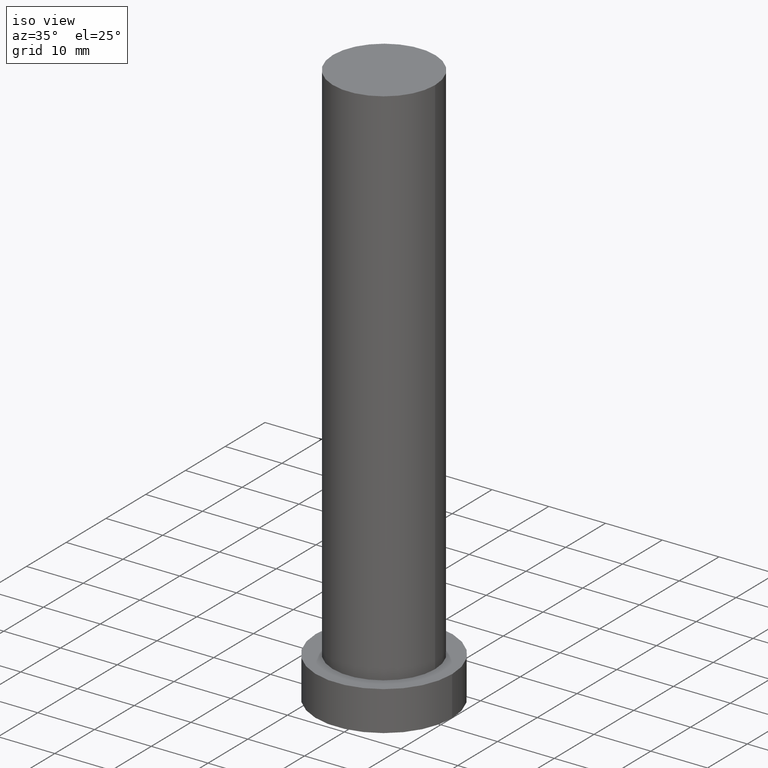
[diagram: clean part render]
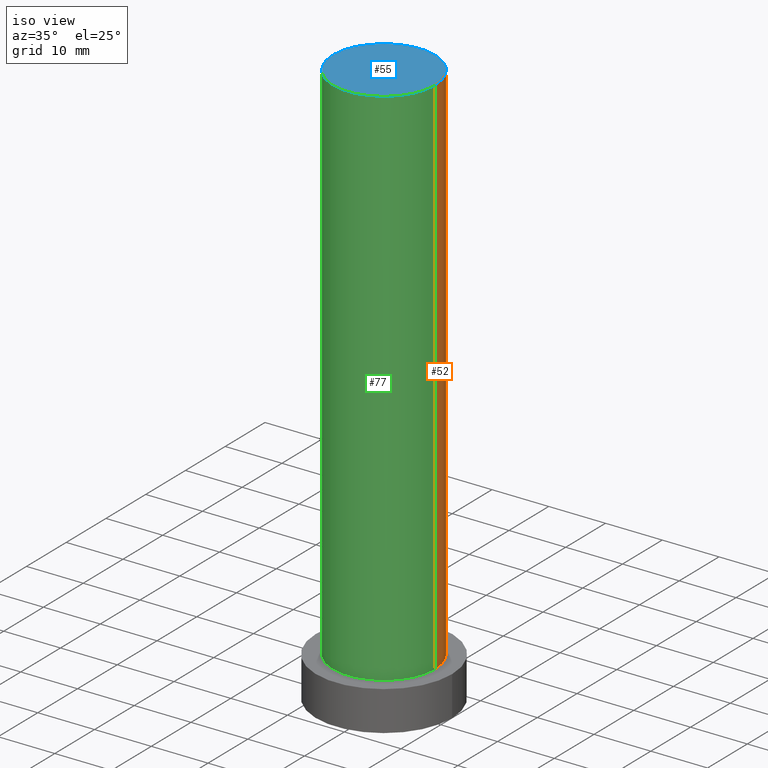
[diagram: same view with three faces highlighted in distinct colors, each labeled with its STEP entity id]
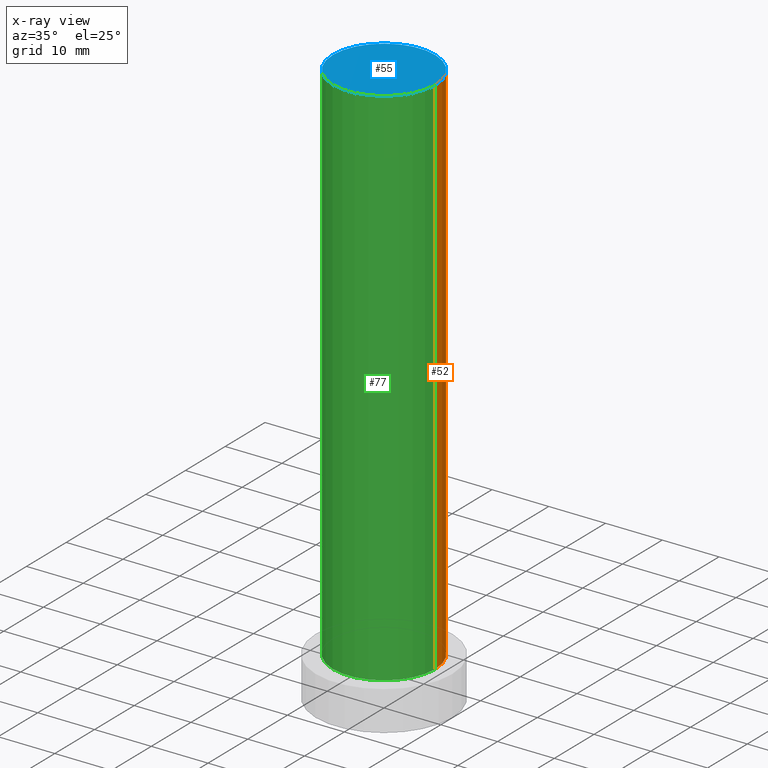
[diagram: x-ray of the same camera — body ghosted, the three highlighted faces saturated]
A machine part, iso view with three faces highlighted in distinct colors.
The next image is the same camera in x-ray (body ghosted, the three faces saturated) — at least one of them is partly hidden behind the body in this view.
Their STEP definitions:

[orange] entity #52 — the highlighted cylindrical surface (partial cylindrical patch) has radius 9 mm, axis along (-0, -0, -1).
#5 = LINE ( 'NONE', #172, #22 ) ;
#11 = AXIS2_PLACEMENT_3D ( 'NONE', #211, #25, #106 ) ;
#22 = VECTOR ( 'NONE', #235, 1000.000000000000000 ) ;
#24 = CIRCLE ( 'NONE', #223, 9.000000000000001776 ) ;
#25 = DIRECTION ( 'NONE',  ( -0.000000000000000000, -0.000000000000000000, -1.000000000000000000 ) ) ;
#28 = CARTESIAN_POINT ( 'NONE',  ( 9.000000000000001776, 1.102182119232617714E-15, 7.000000000000000000 ) ) ;
#30 = DIRECTION ( 'NONE',  ( 0.000000000000000000, 0.000000000000000000, 1.000000000000000000 ) ) ;
#32 = CARTESIAN_POINT ( 'NONE',  ( 0.000000000000000000, 0.000000000000000000, 100.0000000000000000 ) ) ;
#47 = EDGE_CURVE ( 'NONE', #250, #99, #232, .T. ) ;
#50 = EDGE_CURVE ( 'NONE', #174, #123, #5, .T. ) ;
#52 = ADVANCED_FACE ( 'NONE', ( #237 ), #60, .T. ) ;
#60 = CYLINDRICAL_SURFACE ( 'NONE', #11, 9.000000000000001776 ) ;
#83 = EDGE_CURVE ( 'NONE', #174, #250, #193, .T. ) ;
#99 = VERTEX_POINT ( 'NONE', #110 ) ;
#105 = ORIENTED_EDGE ( 'NONE', *, *, #47, .F. ) ;
#106 = DIRECTION ( 'NONE',  ( -1.000000000000000000, 0.000000000000000000, 0.000000000000000000 ) ) ;
#109 = CARTESIAN_POINT ( 'NONE',  ( 9.000000000000001776, 1.102182119232617714E-15, 100.0000000000000000 ) ) ;
#110 = CARTESIAN_POINT ( 'NONE',  ( -9.000000000000001776, 0.000000000000000000, 7.000000000000000000 ) ) ;
#111 = DIRECTION ( 'NONE',  ( 1.000000000000000000, 0.000000000000000000, 0.000000000000000000 ) ) ;
#123 = VERTEX_POINT ( 'NONE', #28 ) ;
#132 = VECTOR ( 'NONE', #136, 1000.000000000000000 ) ;
#136 = DIRECTION ( 'NONE',  ( -0.000000000000000000, -0.000000000000000000, -1.000000000000000000 ) ) ;
#150 = ORIENTED_EDGE ( 'NONE', *, *, #83, .F. ) ;
#152 = CARTESIAN_POINT ( 'NONE',  ( -9.000000000000001776, 0.000000000000000000, 100.0000000000000000 ) ) ;
#157 = CARTESIAN_POINT ( 'NONE',  ( -9.000000000000001776, 0.000000000000000000, 100.0000000000000000 ) ) ;
#167 = DIRECTION ( 'NONE',  ( 1.000000000000000000, 0.000000000000000000, 0.000000000000000000 ) ) ;
#172 = CARTESIAN_POINT ( 'NONE',  ( 9.000000000000001776, 1.102182119232617714E-15, 100.0000000000000000 ) ) ;
#174 = VERTEX_POINT ( 'NONE', #109 ) ;
#175 = EDGE_CURVE ( 'NONE', #123, #99, #24, .T. ) ;
#176 = EDGE_LOOP ( 'NONE', ( #150, #214, #252, #105 ) ) ;
#193 = CIRCLE ( 'NONE', #226, 9.000000000000001776 ) ;
#205 = CARTESIAN_POINT ( 'NONE',  ( 0.000000000000000000, 0.000000000000000000, 7.000000000000000000 ) ) ;
#211 = CARTESIAN_POINT ( 'NONE',  ( 0.000000000000000000, 0.000000000000000000, 100.0000000000000000 ) ) ;
#214 = ORIENTED_EDGE ( 'NONE', *, *, #50, .T. ) ;
#221 = DIRECTION ( 'NONE',  ( 0.000000000000000000, 0.000000000000000000, 1.000000000000000000 ) ) ;
#223 = AXIS2_PLACEMENT_3D ( 'NONE', #205, #30, #111 ) ;
#226 = AXIS2_PLACEMENT_3D ( 'NONE', #32, #221, #167 ) ;
#232 = LINE ( 'NONE', #157, #132 ) ;
#235 = DIRECTION ( 'NONE',  ( -0.000000000000000000, -0.000000000000000000, -1.000000000000000000 ) ) ;
#237 = FACE_OUTER_BOUND ( 'NONE', #176, .T. ) ;
#250 = VERTEX_POINT ( 'NONE', #152 ) ;
#252 = ORIENTED_EDGE ( 'NONE', *, *, #175, .T. ) ;

[blue] entity #55 — the highlighted planar face has unit normal (0, 0, 1).
#13 = CARTESIAN_POINT ( 'NONE',  ( 0.000000000000000000, 0.000000000000000000, 100.0000000000000000 ) ) ;
#32 = CARTESIAN_POINT ( 'NONE',  ( 0.000000000000000000, 0.000000000000000000, 100.0000000000000000 ) ) ;
#35 = PLANE ( 'NONE',  #71 ) ;
#55 = ADVANCED_FACE ( 'NONE', ( #76 ), #35, .T. ) ;
#61 = DIRECTION ( 'NONE',  ( 1.000000000000000000, 0.000000000000000000, -0.000000000000000000 ) ) ;
#70 = CIRCLE ( 'NONE', #95, 9.000000000000001776 ) ;
#71 = AXIS2_PLACEMENT_3D ( 'NONE', #153, #212, #61 ) ;
#76 = FACE_OUTER_BOUND ( 'NONE', #98, .T. ) ;
#83 = EDGE_CURVE ( 'NONE', #174, #250, #193, .T. ) ;
#95 = AXIS2_PLACEMENT_3D ( 'NONE', #13, #142, #124 ) ;
#98 = EDGE_LOOP ( 'NONE', ( #228, #230 ) ) ;
#109 = CARTESIAN_POINT ( 'NONE',  ( 9.000000000000001776, 1.102182119232617714E-15, 100.0000000000000000 ) ) ;
#124 = DIRECTION ( 'NONE',  ( 1.000000000000000000, 0.000000000000000000, 0.000000000000000000 ) ) ;
#142 = DIRECTION ( 'NONE',  ( 0.000000000000000000, 0.000000000000000000, 1.000000000000000000 ) ) ;
#152 = CARTESIAN_POINT ( 'NONE',  ( -9.000000000000001776, 0.000000000000000000, 100.0000000000000000 ) ) ;
#153 = CARTESIAN_POINT ( 'NONE',  ( 0.000000000000000000, 0.000000000000000000, 100.0000000000000000 ) ) ;
#167 = DIRECTION ( 'NONE',  ( 1.000000000000000000, 0.000000000000000000, 0.000000000000000000 ) ) ;
#174 = VERTEX_POINT ( 'NONE', #109 ) ;
#193 = CIRCLE ( 'NONE', #226, 9.000000000000001776 ) ;
#209 = EDGE_CURVE ( 'NONE', #250, #174, #70, .T. ) ;
#212 = DIRECTION ( 'NONE',  ( 0.000000000000000000, 0.000000000000000000, 1.000000000000000000 ) ) ;
#221 = DIRECTION ( 'NONE',  ( 0.000000000000000000, 0.000000000000000000, 1.000000000000000000 ) ) ;
#226 = AXIS2_PLACEMENT_3D ( 'NONE', #32, #221, #167 ) ;
#228 = ORIENTED_EDGE ( 'NONE', *, *, #209, .T. ) ;
#230 = ORIENTED_EDGE ( 'NONE', *, *, #83, .T. ) ;
#250 = VERTEX_POINT ( 'NONE', #152 ) ;

[green] entity #77 — the highlighted cylindrical surface (partial cylindrical patch) has radius 9 mm, axis along (-0, -0, -1).
#5 = LINE ( 'NONE', #172, #22 ) ;
#7 = CIRCLE ( 'NONE', #166, 9.000000000000001776 ) ;
#13 = CARTESIAN_POINT ( 'NONE',  ( 0.000000000000000000, 0.000000000000000000, 100.0000000000000000 ) ) ;
#22 = VECTOR ( 'NONE', #235, 1000.000000000000000 ) ;
#28 = CARTESIAN_POINT ( 'NONE',  ( 9.000000000000001776, 1.102182119232617714E-15, 7.000000000000000000 ) ) ;
#36 = EDGE_LOOP ( 'NONE', ( #79, #122, #197, #191 ) ) ;
#43 = DIRECTION ( 'NONE',  ( -1.000000000000000000, 0.000000000000000000, 0.000000000000000000 ) ) ;
#47 = EDGE_CURVE ( 'NONE', #250, #99, #232, .T. ) ;
#50 = EDGE_CURVE ( 'NONE', #174, #123, #5, .T. ) ;
#70 = CIRCLE ( 'NONE', #95, 9.000000000000001776 ) ;
#77 = ADVANCED_FACE ( 'NONE', ( #88 ), #220, .T. ) ;
#79 = ORIENTED_EDGE ( 'NONE', *, *, #50, .F. ) ;
#84 = AXIS2_PLACEMENT_3D ( 'NONE', #204, #93, #43 ) ;
#88 = FACE_OUTER_BOUND ( 'NONE', #36, .T. ) ;
#93 = DIRECTION ( 'NONE',  ( -0.000000000000000000, -0.000000000000000000, -1.000000000000000000 ) ) ;
#95 = AXIS2_PLACEMENT_3D ( 'NONE', #13, #142, #124 ) ;
#99 = VERTEX_POINT ( 'NONE', #110 ) ;
#109 = CARTESIAN_POINT ( 'NONE',  ( 9.000000000000001776, 1.102182119232617714E-15, 100.0000000000000000 ) ) ;
#110 = CARTESIAN_POINT ( 'NONE',  ( -9.000000000000001776, 0.000000000000000000, 7.000000000000000000 ) ) ;
#122 = ORIENTED_EDGE ( 'NONE', *, *, #209, .F. ) ;
#123 = VERTEX_POINT ( 'NONE', #28 ) ;
#124 = DIRECTION ( 'NONE',  ( 1.000000000000000000, 0.000000000000000000, 0.000000000000000000 ) ) ;
#132 = VECTOR ( 'NONE', #136, 1000.000000000000000 ) ;
#136 = DIRECTION ( 'NONE',  ( -0.000000000000000000, -0.000000000000000000, -1.000000000000000000 ) ) ;
#142 = DIRECTION ( 'NONE',  ( 0.000000000000000000, 0.000000000000000000, 1.000000000000000000 ) ) ;
#148 = DIRECTION ( 'NONE',  ( 0.000000000000000000, 0.000000000000000000, 1.000000000000000000 ) ) ;
#152 = CARTESIAN_POINT ( 'NONE',  ( -9.000000000000001776, 0.000000000000000000, 100.0000000000000000 ) ) ;
#157 = CARTESIAN_POINT ( 'NONE',  ( -9.000000000000001776, 0.000000000000000000, 100.0000000000000000 ) ) ;
#166 = AXIS2_PLACEMENT_3D ( 'NONE', #189, #148, #190 ) ;
#172 = CARTESIAN_POINT ( 'NONE',  ( 9.000000000000001776, 1.102182119232617714E-15, 100.0000000000000000 ) ) ;
#174 = VERTEX_POINT ( 'NONE', #109 ) ;
#189 = CARTESIAN_POINT ( 'NONE',  ( 0.000000000000000000, 0.000000000000000000, 7.000000000000000000 ) ) ;
#190 = DIRECTION ( 'NONE',  ( 1.000000000000000000, 0.000000000000000000, 0.000000000000000000 ) ) ;
#191 = ORIENTED_EDGE ( 'NONE', *, *, #192, .T. ) ;
#192 = EDGE_CURVE ( 'NONE', #99, #123, #7, .T. ) ;
#197 = ORIENTED_EDGE ( 'NONE', *, *, #47, .T. ) ;
#204 = CARTESIAN_POINT ( 'NONE',  ( 0.000000000000000000, 0.000000000000000000, 100.0000000000000000 ) ) ;
#209 = EDGE_CURVE ( 'NONE', #250, #174, #70, .T. ) ;
#220 = CYLINDRICAL_SURFACE ( 'NONE', #84, 9.000000000000001776 ) ;
#232 = LINE ( 'NONE', #157, #132 ) ;
#235 = DIRECTION ( 'NONE',  ( -0.000000000000000000, -0.000000000000000000, -1.000000000000000000 ) ) ;
#250 = VERTEX_POINT ( 'NONE', #152 ) ;